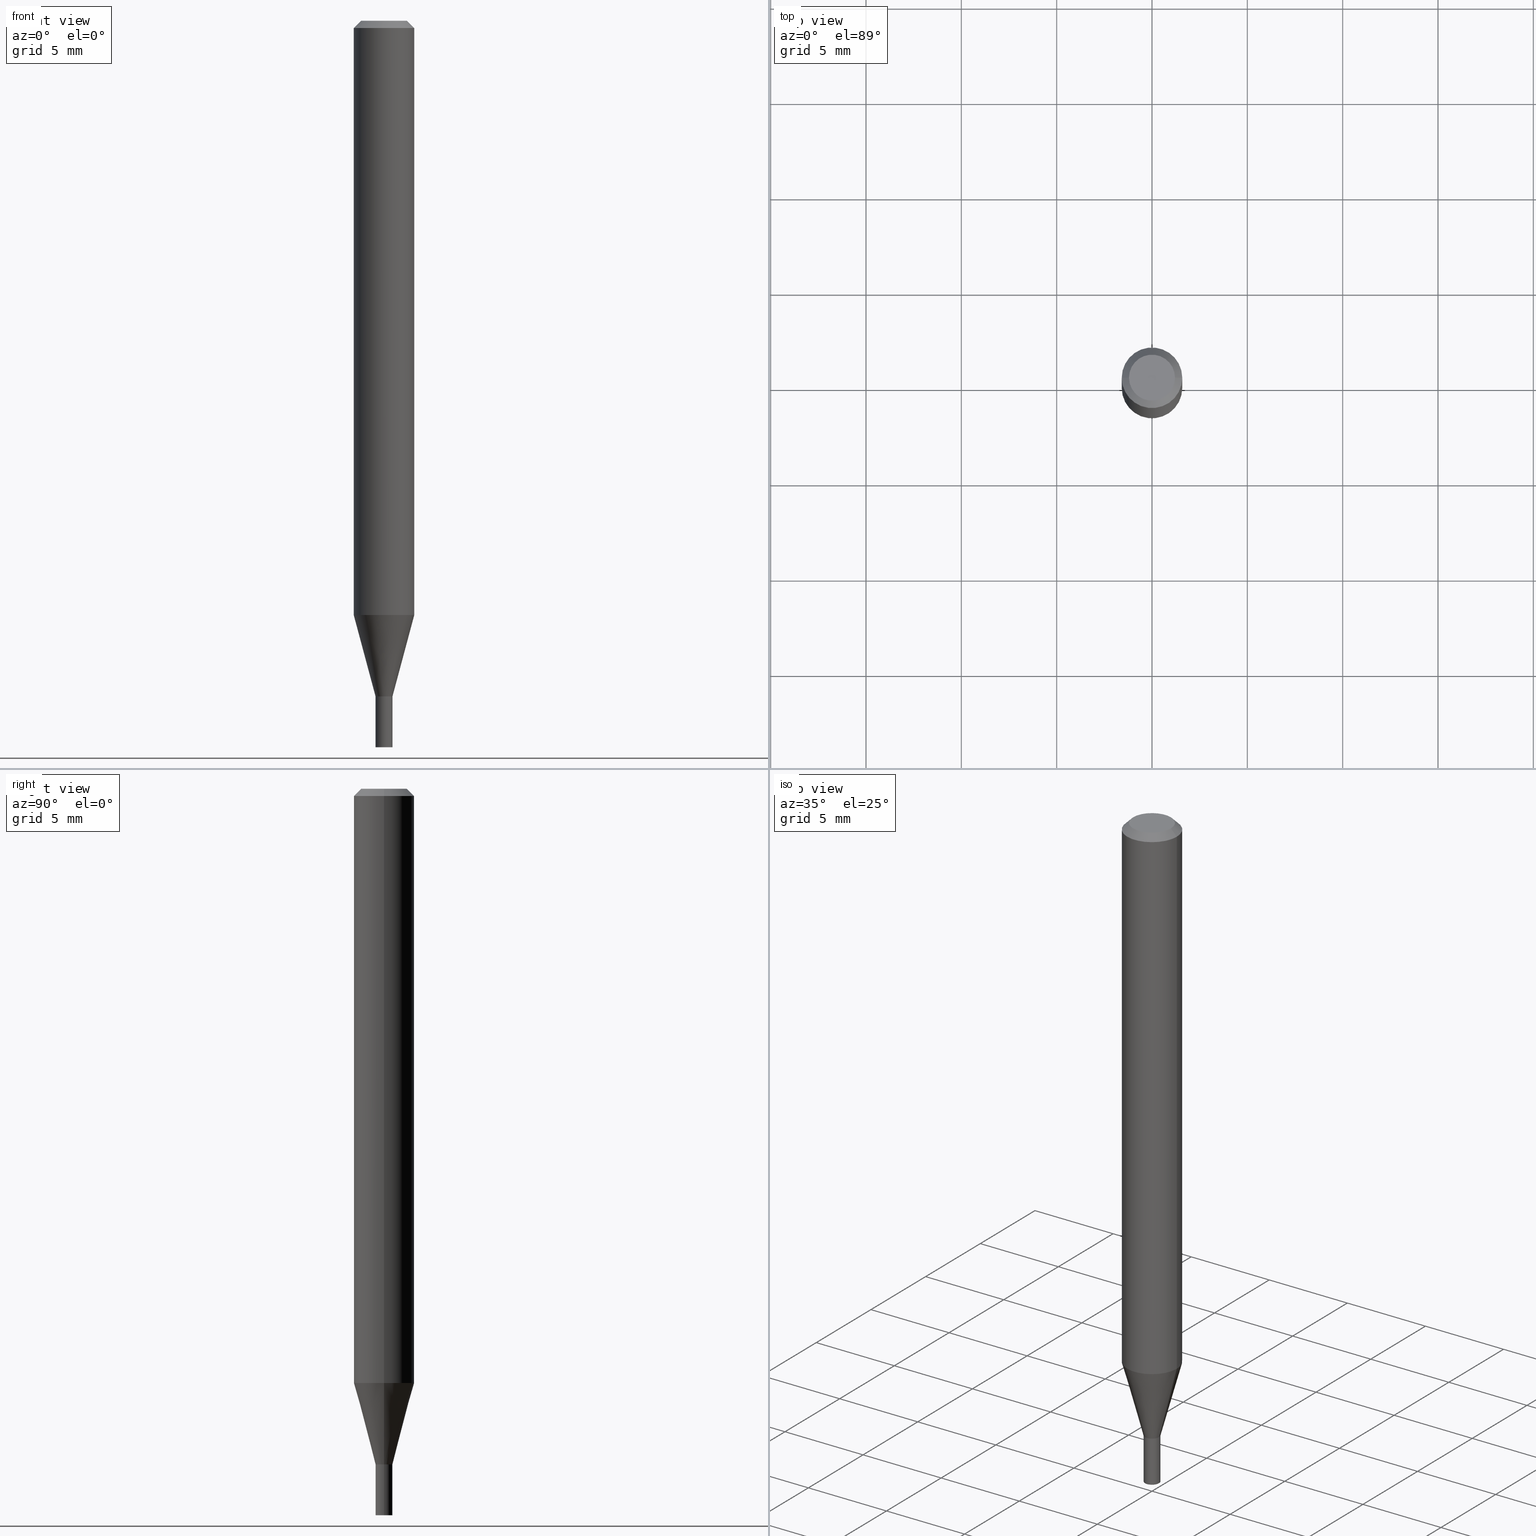
[diagram: canonical four-view strip — front | top / right | iso, engineering-drawing reading convention]
A machine part, canonical four-view strip (front | top / right | iso — engineering-drawing reading convention). The complete STEP part file that produces these views, byte-faithful:
ISO-10303-21;
HEADER;
FILE_DESCRIPTION (( 'STEP AP203' ),
    '1' );
FILE_NAME ('04141.STEP',
    '2024-03-14T17:05:29',
    ( '' ),
    ( '' ),
    'SwSTEP 2.0',
    'SolidWorks 2023',
    '' );
FILE_SCHEMA (( 'CONFIG_CONTROL_DESIGN' ));
ENDSEC;

DATA;
#1 = VECTOR ( 'NONE', #131, 39.37007874015748143 ) ;
#2 = VECTOR ( 'NONE', #178, 39.37007874015748143 ) ;
#3 = ADVANCED_FACE ( 'NONE', ( #314 ), #169, .T. ) ;
#4 = ORIENTED_EDGE ( 'NONE', *, *, #163, .T. ) ;
#5 = ORIENTED_EDGE ( 'NONE', *, *, #134, .F. ) ;
#6 = EDGE_CURVE ( 'NONE', #242, #431, #196, .T. ) ;
#7 = DIRECTION ( 'NONE',  ( 1.000000000000000000, -6.982962677686274599E-15, 0.000000000000000000 ) ) ;
#8 = VECTOR ( 'NONE', #105, 39.37007874015748143 ) ;
#9 = APPROVAL_PERSON_ORGANIZATION ( #465, #438, #360 ) ;
#10 = ORIENTED_EDGE ( 'NONE', *, *, #245, .F. ) ;
#11 = DIRECTION ( 'NONE',  ( -2.445468806185136597E-29, 3.491481338843145583E-15, 1.000000000000000000 ) ) ;
#12 = ORIENTED_EDGE ( 'NONE', *, *, #100, .T. ) ;
#13 = FACE_OUTER_BOUND ( 'NONE', #421, .T. ) ;
#14 = ORIENTED_EDGE ( 'NONE', *, *, #316, .F. ) ;
#15 = DIRECTION ( 'NONE',  ( -2.438088387897960049E-29, 3.491481338843145188E-15, 1.000000000000000000 ) ) ;
#16 = FACE_OUTER_BOUND ( 'NONE', #407, .T. ) ;
#17 = DIRECTION ( 'NONE',  ( -2.445468806185136597E-29, 3.491481338843145583E-15, 1.000000000000000000 ) ) ;
#18 = ORIENTED_EDGE ( 'NONE', *, *, #355, .F. ) ;
#19 = CC_DESIGN_PERSON_AND_ORGANIZATION_ASSIGNMENT ( #250, #328, ( #385 ) ) ;
#20 = APPLICATION_PROTOCOL_DEFINITION ( 'international standard', 'config_control_design', 1994, #217 ) ;
#21 = DIRECTION ( 'NONE',  ( 2.445468806185136597E-29, -3.491481338843145583E-15, -1.000000000000000000 ) ) ;
#22 = CARTESIAN_POINT ( 'NONE',  ( 3.668203209277705088E-31, -5.237222008264718399E-17, -0.01499999999999999944 ) ) ;
#23 = ADVANCED_BREP_SHAPE_REPRESENTATION ( '04141', ( #96, #252, #340 ), #262 ) ;
#24 = LENGTH_MEASURE_WITH_UNIT ( LENGTH_MEASURE( 0.02539999999999999897 ), #312 );
#25 = AXIS2_PLACEMENT_3D ( 'NONE', #334, #216, #120 ) ;
#26 = DIRECTION ( 'NONE',  ( 1.000000000000000000, -6.982962677686248567E-15, 0.000000000000000000 ) ) ;
#27 = ADVANCED_FACE ( 'NONE', ( #376 ), #277, .F. ) ;
#28 = ORIENTED_EDGE ( 'NONE', *, *, #389, .T. ) ;
#29 = DIRECTION ( 'NONE',  ( 1.000000000000000000, -6.982962677686266711E-15, 0.000000000000000000 ) ) ;
#30 =( NAMED_UNIT ( * ) SI_UNIT ( $, .STERADIAN. ) SOLID_ANGLE_UNIT ( ) );
#31 = CARTESIAN_POINT ( 'NONE',  ( 0.01700000000000000122, -4.989326833206854415E-15, -1.394999999999999796 ) ) ;
#32 = ORIENTED_EDGE ( 'NONE', *, *, #237, .T. ) ;
#33 = AXIS2_PLACEMENT_3D ( 'NONE', #22, #200, #29 ) ;
#34 = EDGE_CURVE ( 'NONE', #149, #361, #261, .T. ) ;
#35 = EDGE_CURVE ( 'NONE', #259, #313, #97, .T. ) ;
#36 = CONICAL_SURFACE ( 'NONE', #384, 0.01749999999999965472, 0.2617993877991502405 ) ;
#37 = CARTESIAN_POINT ( 'NONE',  ( 0.06250000000000000000, -4.811533449433679005E-16, -0.01499999999999999944 ) ) ;
#38 = DIRECTION ( 'NONE',  ( -2.445468806185136597E-29, 3.491481338843145583E-15, 1.000000000000000000 ) ) ;
#39 = SHAPE_DEFINITION_REPRESENTATION ( #143, #23 ) ;
#40 = AXIS2_PLACEMENT_3D ( 'NONE', #440, #342, #82 ) ;
#41 = CARTESIAN_POINT ( 'NONE',  ( 3.668203209277704895E-29, -5.237222008264718177E-15, -1.500000000000000222 ) ) ;
#42 = VECTOR ( 'NONE', #285, 39.37007874015748143 ) ;
#43 = VERTEX_POINT ( 'NONE', #179 ) ;
#44 = DIRECTION ( 'NONE',  ( -2.445468806185136597E-29, 3.491481338843145583E-15, 1.000000000000000000 ) ) ;
#45 = EDGE_LOOP ( 'NONE', ( #18, #238, #403, #317 ) ) ;
#46 = ADVANCED_FACE ( 'NONE', ( #188 ), #93, .T. ) ;
#47 = DIRECTION ( 'NONE',  ( -2.445468806185136597E-29, 3.491481338843145583E-15, 1.000000000000000000 ) ) ;
#48 = DIRECTION ( 'NONE',  ( -2.445468806185136877E-29, 3.491481338843145188E-15, 1.000000000000000000 ) ) ;
#49 = DIRECTION ( 'NONE',  ( -2.445468806185136597E-29, 3.491481338843145583E-15, 1.000000000000000000 ) ) ;
#50 = ORIENTED_EDGE ( 'NONE', *, *, #35, .F. ) ;
#51 = CARTESIAN_POINT ( 'NONE',  ( 0.000000000000000000, 0.000000000000000000, 0.000000000000000000 ) ) ;
#52 = LOCAL_TIME ( 13, 5, 29.00000000000000000, #275 ) ;
#53 = LOCAL_TIME ( 13, 5, 29.00000000000000000, #284 ) ;
#54 = ORIENTED_EDGE ( 'NONE', *, *, #273, .T. ) ;
#55 = ADVANCED_FACE ( 'NONE', ( #219 ), #83, .F. ) ;
#56 = VERTEX_POINT ( 'NONE', #290 ) ;
#57 = CALENDAR_DATE ( 2024, 14, 3 ) ;
#58 = CC_DESIGN_PERSON_AND_ORGANIZATION_ASSIGNMENT ( #244, #205, ( #385 ) ) ;
#59 = PRODUCT_DEFINITION ( 'UNKNOWN', '', #385, #398 ) ;
#60 = CC_DESIGN_DATE_AND_TIME_ASSIGNMENT ( #91, #381, ( #59 ) ) ;
#61 = DIRECTION ( 'NONE',  ( 1.000000000000000000, -6.982962677686267499E-15, 4.852736867747366768E-29 ) ) ;
#62 = ORIENTED_EDGE ( 'NONE', *, *, #280, .F. ) ;
#63 = MECHANICAL_CONTEXT ( 'NONE', #420, 'mechanical' ) ;
#64 = CARTESIAN_POINT ( 'NONE',  ( 3.000731362142915866E-29, -4.284249108925330363E-15, -1.227057713659399862 ) ) ;
#65 = ORIENTED_EDGE ( 'NONE', *, *, #296, .F. ) ;
#66 = CARTESIAN_POINT ( 'NONE',  ( 0.06250000000000000000, -4.364351673553916694E-16, 3.047610484872459871E-30 ) ) ;
#67 = PERSON_AND_ORGANIZATION ( #378, #207 ) ;
#68 = AXIS2_PLACEMENT_3D ( 'NONE', #310, #455, #241 ) ;
#69 = AXIS2_PLACEMENT_3D ( 'NONE', #144, #288, #78 ) ;
#70 = EDGE_CURVE ( 'NONE', #371, #266, #416, .T. ) ;
#71 = DIRECTION ( 'NONE',  ( -2.445468806185136597E-29, 3.491481338843145583E-15, 1.000000000000000000 ) ) ;
#72 = ORIENTED_EDGE ( 'NONE', *, *, #237, .F. ) ;
#73 = ORIENTED_EDGE ( 'NONE', *, *, #198, .T. ) ;
#74 = SECURITY_CLASSIFICATION_LEVEL ( 'unclassified' ) ;
#75 = EDGE_LOOP ( 'NONE', ( #127, #32, #98, #442 ) ) ;
#76 = UNCERTAINTY_MEASURE_WITH_UNIT (LENGTH_MEASURE( 1.000000000000000082E-05 ), #272, 'distance_accuracy_value', 'NONE');
#77 = FACE_OUTER_BOUND ( 'NONE', #75, .T. ) ;
#78 = DIRECTION ( 'NONE',  ( 1.000000000000000000, -6.982962677686276177E-15, 0.000000000000000000 ) ) ;
#79 = ORIENTED_EDGE ( 'NONE', *, *, #273, .F. ) ;
#80 = DIRECTION ( 'NONE',  ( -0.7071067811865642261, 7.493145998870414114E-15, 0.7071067811865309194 ) ) ;
#81 = EDGE_CURVE ( 'NONE', #432, #386, #369, .T. ) ;
#82 = DIRECTION ( 'NONE',  ( 1.000000000000000000, -6.982962677686262766E-15, 0.000000000000000000 ) ) ;
#83 = PLANE ( 'NONE',  #251 ) ;
#84 = LINE ( 'NONE', #373, #172 ) ;
#85 = CYLINDRICAL_SURFACE ( 'NONE', #68, 0.01749999999999965125 ) ;
#86 = ORIENTED_EDGE ( 'NONE', *, *, #389, .F. ) ;
#87 = CARTESIAN_POINT ( 'NONE',  ( 0.01750000000000000167, -5.359423855124228160E-15, -1.500000000000000222 ) ) ;
#88 = AXIS2_PLACEMENT_3D ( 'NONE', #409, #38, #400 ) ;
#89 = ORIENTED_EDGE ( 'NONE', *, *, #327, .F. ) ;
#90 = PERSON_AND_ORGANIZATION ( #378, #207 ) ;
#91 = DATE_AND_TIME ( #197, #354 ) ;
#92 = LINE ( 'NONE', #346, #434 ) ;
#93 = CONICAL_SURFACE ( 'NONE', #88, 0.01700000000000000122, 0.7853981633974718157 ) ;
#94 = CARTESIAN_POINT ( 'NONE',  ( 3.411428984628265351E-29, -4.870616467686188228E-15, -1.395000000000000018 ) ) ;
#95 = APPLICATION_PROTOCOL_DEFINITION ( 'international standard', 'config_control_design', 1994, #420 ) ;
#96 = MANIFOLD_SOLID_BREP ( 'Body-Move/Copy2[1]', #322 ) ;
#97 = LINE ( 'NONE', #243, #382 ) ;
#98 = ORIENTED_EDGE ( 'NONE', *, *, #81, .T. ) ;
#99 = SECURITY_CLASSIFICATION ( '', '', #74 ) ;
#100 = EDGE_CURVE ( 'NONE', #259, #351, #424, .T. ) ;
#101 = CARTESIAN_POINT ( 'NONE',  ( 0.000000000000000000, 0.000000000000000000, 0.000000000000000000 ) ) ;
#102 = EDGE_LOOP ( 'NONE', ( #54, #439, #5, #228 ) ) ;
#103 = COORDINATED_UNIVERSAL_TIME_OFFSET ( 5, 0, .BEHIND. ) ;
#104 = AXIS2_PLACEMENT_3D ( 'NONE', #404, #47, #338 ) ;
#105 = DIRECTION ( 'NONE',  ( -2.445468806185136877E-29, 3.491481338843145188E-15, 1.000000000000000000 ) ) ;
#106 = ORIENTED_EDGE ( 'NONE', *, *, #321, .F. ) ;
#107 = COORDINATED_UNIVERSAL_TIME_OFFSET ( 5, 0, .BEHIND. ) ;
#108 = CARTESIAN_POINT ( 'NONE',  ( 3.411428984628265351E-29, -4.870616467686188228E-15, -1.395000000000000018 ) ) ;
#109 = ORIENTED_EDGE ( 'NONE', *, *, #245, .T. ) ;
#110 = ORIENTED_EDGE ( 'NONE', *, *, #34, .F. ) ;
#111 = CARTESIAN_POINT ( 'NONE',  ( 0.01749999999999965125, -4.991072573876274341E-15, -1.394500000000000073 ) ) ;
#112 = ADVANCED_FACE ( 'NONE', ( #451 ), #161, .T. ) ;
#113 = DIRECTION ( 'NONE',  ( -2.445468806185136597E-29, 3.491481338843145583E-15, 1.000000000000000000 ) ) ;
#114 = ORIENTED_EDGE ( 'NONE', *, *, #134, .T. ) ;
#115 = CIRCLE ( 'NONE', #69, 0.01749999999999965472 ) ;
#116 = CC_DESIGN_PERSON_AND_ORGANIZATION_ASSIGNMENT ( #418, #203, ( #222 ) ) ;
#117 = DIRECTION ( 'NONE',  ( 1.000000000000000000, -6.982962677686265922E-15, 4.876176775795935793E-29 ) ) ;
#118 = CC_DESIGN_APPROVAL ( #438, ( #99 ) ) ;
#119 = CARTESIAN_POINT ( 'NONE',  ( 3.410206250225173110E-29, -4.868870727016767513E-15, -1.394500000000000073 ) ) ;
#120 = DIRECTION ( 'NONE',  ( -1.000000000000000000, 6.982962677686266711E-15, 0.000000000000000000 ) ) ;
#121 = DIRECTION ( 'NONE',  ( 1.000000000000000000, -6.982962677686265922E-15, 4.876176775795935793E-29 ) ) ;
#122 = CARTESIAN_POINT ( 'NONE',  ( 0.000000000000000000, 0.000000000000000000, 0.000000000000000000 ) ) ;
#123 = ORIENTED_EDGE ( 'NONE', *, *, #316, .T. ) ;
#124 = FACE_OUTER_BOUND ( 'NONE', #456, .T. ) ;
#125 = CONICAL_SURFACE ( 'NONE', #390, 0.01700000000000000122, 0.7853981633974718157 ) ;
#126 = DIRECTION ( 'NONE',  ( -2.445468806185136597E-29, 3.491481338843145583E-15, 1.000000000000000000 ) ) ;
#127 = ORIENTED_EDGE ( 'NONE', *, *, #212, .F. ) ;
#128 = DIRECTION ( 'NONE',  ( 0.000000000000000000, 0.000000000000000000, 1.000000000000000000 ) ) ;
#129 = CARTESIAN_POINT ( 'NONE',  ( -0.01749999999999965125, -4.744525748258752631E-15, -1.394500000000000073 ) ) ;
#130 = DIRECTION ( 'NONE',  ( 1.000000000000000000, -6.982962677686262766E-15, 0.000000000000000000 ) ) ;
#131 = DIRECTION ( 'NONE',  ( -2.445468806185136877E-29, 3.491481338843145188E-15, 1.000000000000000000 ) ) ;
#132 = DIRECTION ( 'NONE',  ( 1.000000000000000000, -6.982962677686266711E-15, 0.000000000000000000 ) ) ;
#133 = APPROVAL_PERSON_ORGANIZATION ( #90, #239, #380 ) ;
#134 = EDGE_CURVE ( 'NONE', #386, #414, #374, .T. ) ;
#135 = CC_DESIGN_PERSON_AND_ORGANIZATION_ASSIGNMENT ( #419, #448, ( #59 ) ) ;
#136 = CIRCLE ( 'NONE', #33, 0.06250000000000000000 ) ;
#137 = ORIENTED_EDGE ( 'NONE', *, *, #426, .F. ) ;
#138 = PERSON_AND_ORGANIZATION_ROLE ( 'classification_officer' ) ;
#139 = LINE ( 'NONE', #37, #2 ) ;
#140 = DATE_AND_TIME ( #170, #53 ) ;
#141 = FACE_OUTER_BOUND ( 'NONE', #151, .T. ) ;
#142 = AXIS2_PLACEMENT_3D ( 'NONE', #405, #295, #26 ) ;
#143 = PRODUCT_DEFINITION_SHAPE ( 'NONE', 'NONE',  #59 ) ;
#144 = CARTESIAN_POINT ( 'NONE',  ( 3.411428984628265351E-29, -4.870616467686188228E-15, -1.395000000000000018 ) ) ;
#145 = ORIENTED_EDGE ( 'NONE', *, *, #457, .F. ) ;
#146 = ADVANCED_FACE ( 'NONE', ( #423 ), #85, .F. ) ;
#147 = LINE ( 'NONE', #152, #42 ) ;
#148 = DIRECTION ( 'NONE',  ( -1.000000000000000000, 6.982962677686265922E-15, -4.876176775795935793E-29 ) ) ;
#149 = VERTEX_POINT ( 'NONE', #129 ) ;
#150 = EDGE_CURVE ( 'NONE', #324, #361, #230, .T. ) ;
#151 = EDGE_LOOP ( 'NONE', ( #449, #379, #145, #402 ) ) ;
#152 = CARTESIAN_POINT ( 'NONE',  ( -0.01749999999999965472, -4.746271488928174135E-15, -1.395000000000000018 ) ) ;
#153 = AXIS2_PLACEMENT_3D ( 'NONE', #459, #21, #233 ) ;
#154 = DIRECTION ( 'NONE',  ( 1.000000000000000000, -6.982962677686248567E-15, 0.000000000000000000 ) ) ;
#155 = ORIENTED_EDGE ( 'NONE', *, *, #355, .T. ) ;
#156 = DATE_AND_TIME ( #57, #52 ) ;
#157 = EDGE_CURVE ( 'NONE', #383, #242, #450, .T. ) ;
#158 = DIRECTION ( 'NONE',  ( 2.438088387897960049E-29, -3.491481338843145188E-15, -1.000000000000000000 ) ) ;
#159 = DIRECTION ( 'NONE',  ( -2.445468806185136597E-29, 3.491481338843145583E-15, 1.000000000000000000 ) ) ;
#160 = AXIS2_PLACEMENT_3D ( 'NONE', #119, #267, #410 ) ;
#161 = CYLINDRICAL_SURFACE ( 'NONE', #286, 0.01750000000000000167 ) ;
#162 =( NAMED_UNIT ( * ) PLANE_ANGLE_UNIT ( ) SI_UNIT ( $, .RADIAN. ) );
#163 = EDGE_CURVE ( 'NONE', #266, #361, #201, .T. ) ;
#164 = DIRECTION ( 'NONE',  ( -2.445468806185136597E-29, 3.491481338843145583E-15, 1.000000000000000000 ) ) ;
#165 = DIRECTION ( 'NONE',  ( -2.445468806185136597E-29, 3.491481338843145583E-15, 1.000000000000000000 ) ) ;
#166 = ORIENTED_EDGE ( 'NONE', *, *, #150, .F. ) ;
#167 = CARTESIAN_POINT ( 'NONE',  ( 0.06250000000000000000, -4.888073874380388472E-16, -0.01499999999999999944 ) ) ;
#168 = FACE_OUTER_BOUND ( 'NONE', #283, .T. ) ;
#169 = CONICAL_SURFACE ( 'NONE', #153, 0.06250000000000000000, 0.7853981633974658205 ) ;
#170 = CALENDAR_DATE ( 2024, 14, 3 ) ;
#171 = DIRECTION ( 'NONE',  ( -0.7071067811865598962, 2.468850131082386434E-15, -0.7071067811865351382 ) ) ;
#172 = VECTOR ( 'NONE', #80, 39.37007874015748143 ) ;
#173 = ORIENTED_EDGE ( 'NONE', *, *, #6, .T. ) ;
#174 = ADVANCED_FACE ( 'NONE', ( #429 ), #357, .T. ) ;
#175 = DATE_AND_TIME ( #393, #464 ) ;
#176 = LINE ( 'NONE', #326, #271 ) ;
#177 = APPROVAL_DATE_TIME ( #427, #438 ) ;
#178 = DIRECTION ( 'NONE',  ( 0.7071067811865598962, -7.319954787623298644E-15, -0.7071067811865351382 ) ) ;
#179 = CARTESIAN_POINT ( 'NONE',  ( -0.01749999999999965472, -4.293215694001720941E-15, -1.395000000000000018 ) ) ;
#180 = DIRECTION ( 'NONE',  ( -2.445468806185136877E-29, 3.491481338843145188E-15, 1.000000000000000000 ) ) ;
#181 = ADVANCED_FACE ( 'NONE', ( #141 ), #186, .T. ) ;
#182 = ORIENTED_EDGE ( 'NONE', *, *, #430, .F. ) ;
#183 = AXIS2_PLACEMENT_3D ( 'NONE', #51, #395, #329 ) ;
#184 = DIRECTION ( 'NONE',  ( -2.445468806185136597E-29, 3.491481338843145583E-15, 1.000000000000000000 ) ) ;
#185 = ORIENTED_EDGE ( 'NONE', *, *, #366, .T. ) ;
#186 = CYLINDRICAL_SURFACE ( 'NONE', #323, 0.06250000000000000000 ) ;
#187 = DIRECTION ( 'NONE',  ( 1.000000000000000000, -6.982962677686274599E-15, 0.000000000000000000 ) ) ;
#188 = FACE_OUTER_BOUND ( 'NONE', #193, .T. ) ;
#189 = CARTESIAN_POINT ( 'NONE',  ( 3.411428984628264790E-29, -4.870616467686187439E-15, -1.394999999999999796 ) ) ;
#190 = ORIENTED_EDGE ( 'NONE', *, *, #70, .T. ) ;
#191 = CIRCLE ( 'NONE', #160, 0.01749999999999965125 ) ;
#192 = CARTESIAN_POINT ( 'NONE',  ( 0.01749999999999965472, -4.992818314545695844E-15, -1.395000000000000018 ) ) ;
#193 = EDGE_LOOP ( 'NONE', ( #123, #292, #209, #291 ) ) ;
#194 = CARTESIAN_POINT ( 'NONE',  ( 3.316907271900976096E-16, 0.04749999999999999362, -4.273281759770383169E-16 ) ) ;
#195 = DIRECTION ( 'NONE',  ( 1.000000000000000000, 0.000000000000000000, 0.000000000000000000 ) ) ;
#196 = LINE ( 'NONE', #66, #1 ) ;
#197 = CALENDAR_DATE ( 2024, 14, 3 ) ;
#198 = EDGE_CURVE ( 'NONE', #361, #149, #191, .T. ) ;
#199 = ORIENTED_EDGE ( 'NONE', *, *, #150, .T. ) ;
#200 = DIRECTION ( 'NONE',  ( -2.445468806185136597E-29, 3.491481338843145583E-15, 1.000000000000000000 ) ) ;
#201 = LINE ( 'NONE', #31, #417 ) ;
#202 = DIMENSIONAL_EXPONENTS ( 1.000000000000000000, 0.000000000000000000, 0.000000000000000000, 0.000000000000000000, 0.000000000000000000, 0.000000000000000000, 0.000000000000000000 ) ;
#203 = PERSON_AND_ORGANIZATION_ROLE ( 'design_owner' ) ;
#204 = ORIENTED_EDGE ( 'NONE', *, *, #430, .T. ) ;
#205 = PERSON_AND_ORGANIZATION_ROLE ( 'design_supplier' ) ;
#206 = AXIS2_PLACEMENT_3D ( 'NONE', #94, #126, #347 ) ;
#207 = ORGANIZATION ( 'UNSPECIFIED', 'UNSPECIFIED', '' ) ;
#208 = CC_DESIGN_APPROVAL ( #304, ( #385 ) ) ;
#209 = ORIENTED_EDGE ( 'NONE', *, *, #198, .F. ) ;
#210 = DIRECTION ( 'NONE',  ( 1.000000000000000000, -6.982962677686266711E-15, 4.876176775795935793E-29 ) ) ;
#211 = EDGE_LOOP ( 'NONE', ( #12, #28 ) ) ;
#212 = EDGE_CURVE ( 'NONE', #56, #414, #176, .T. ) ;
#213 = AXIS2_PLACEMENT_3D ( 'NONE', #339, #17, #61 ) ;
#214 = CIRCLE ( 'NONE', #142, 0.01750000000000000167 ) ;
#215 = PERSON_AND_ORGANIZATION ( #378, #207 ) ;
#216 = DIRECTION ( 'NONE',  ( 2.445468806185136597E-29, -3.491481338843145583E-15, -1.000000000000000000 ) ) ;
#217 = APPLICATION_CONTEXT ( 'configuration controlled 3d designs of mechanical parts and assemblies' ) ;
#218 = CARTESIAN_POINT ( 'NONE',  ( -0.01700000000000000122, -4.747174975432861466E-15, -1.394999999999999796 ) ) ;
#219 = FACE_OUTER_BOUND ( 'NONE', #391, .T. ) ;
#220 = ORIENTED_EDGE ( 'NONE', *, *, #352, .F. ) ;
#221 = AXIS2_PLACEMENT_3D ( 'NONE', #240, #422, #132 ) ;
#222 = PRODUCT ( '04141', '04141', '', ( #63 ) ) ;
#223 = CYLINDRICAL_SURFACE ( 'NONE', #183, 0.01750000000000000167 ) ;
#224 = DIRECTION ( 'NONE',  ( 1.000000000000000000, -6.982962677686274599E-15, 0.000000000000000000 ) ) ;
#225 = ORIENTED_EDGE ( 'NONE', *, *, #70, .F. ) ;
#226 = CARTESIAN_POINT ( 'NONE',  ( -0.06250000000000000000, 4.440892098500626162E-16, -3.074334431409316114E-30 ) ) ;
#227 = CARTESIAN_POINT ( 'NONE',  ( 0.01750000000000000167, -1.222018468595096625E-16, 8.533309357642889039E-31 ) ) ;
#228 = ORIENTED_EDGE ( 'NONE', *, *, #81, .F. ) ;
#229 = CARTESIAN_POINT ( 'NONE',  ( 0.01749999999999965472, -4.992818314545695844E-15, -1.395000000000000018 ) ) ;
#230 = LINE ( 'NONE', #276, #270 ) ;
#231 = VECTOR ( 'NONE', #48, 39.37007874015748143 ) ;
#232 = CIRCLE ( 'NONE', #278, 0.01749999999999965472 ) ;
#233 = DIRECTION ( 'NONE',  ( -1.000000000000000000, 6.982962677686266711E-15, 0.000000000000000000 ) ) ;
#234 = DIRECTION ( 'NONE',  ( 1.000000000000000000, -6.982962677686276177E-15, 0.000000000000000000 ) ) ;
#235 = EDGE_CURVE ( 'NONE', #414, #386, #375, .T. ) ;
#236 = COORDINATED_UNIVERSAL_TIME_OFFSET ( 5, 0, .BEHIND. ) ;
#237 = EDGE_CURVE ( 'NONE', #56, #432, #214, .T. ) ;
#238 = ORIENTED_EDGE ( 'NONE', *, *, #100, .F. ) ;
#239 = APPROVAL ( #415, 'UNSPECIFIED' ) ;
#240 = CARTESIAN_POINT ( 'NONE',  ( 3.668203209277705088E-31, -5.237222008264718399E-17, -0.01499999999999999944 ) ) ;
#241 = DIRECTION ( 'NONE',  ( 1.000000000000000000, -6.982962677686265922E-15, 4.876176775795935793E-29 ) ) ;
#242 = VERTEX_POINT ( 'NONE', #311 ) ;
#243 = CARTESIAN_POINT ( 'NONE',  ( -0.06250000000000000000, 3.840629472727444916E-16, -0.01499999999999999944 ) ) ;
#244 = PERSON_AND_ORGANIZATION ( #378, #207 ) ;
#245 = EDGE_CURVE ( 'NONE', #43, #324, #232, .T. ) ;
#246 = CC_DESIGN_PERSON_AND_ORGANIZATION_ASSIGNMENT ( #215, #138, ( #99 ) ) ;
#247 = AXIS2_PLACEMENT_3D ( 'NONE', #41, #184, #154 ) ;
#248 = ADVANCED_FACE ( 'NONE', ( #168 ), #387, .F. ) ;
#249 = EDGE_LOOP ( 'NONE', ( #10, #204, #307, #166 ) ) ;
#250 = PERSON_AND_ORGANIZATION ( #378, #207 ) ;
#251 = AXIS2_PLACEMENT_3D ( 'NONE', #364, #337, #148 ) ;
#252 = MANIFOLD_SOLID_BREP ( 'Body-Move/Copy2[2]', #401 ) ;
#253 = AXIS2_PLACEMENT_3D ( 'NONE', #189, #444, #7 ) ;
#254 = CARTESIAN_POINT ( 'NONE',  ( 0.04749999999999999362, -4.035134999187587991E-16, -5.229656247639753758E-16 ) ) ;
#255 = ORIENTED_EDGE ( 'NONE', *, *, #235, .T. ) ;
#256 = DIRECTION ( 'NONE',  ( -2.445468806185136597E-29, 3.491481338843145583E-15, 1.000000000000000000 ) ) ;
#257 = EDGE_LOOP ( 'NONE', ( #65, #109, #349, #435 ) ) ;
#258 = APPROVAL_ROLE ( '' ) ;
#259 = VERTEX_POINT ( 'NONE', #299 ) ;
#260 = CARTESIAN_POINT ( 'NONE',  ( 0.01750000000000000167, -4.992818314545698211E-15, -1.395000000000000018 ) ) ;
#261 = CIRCLE ( 'NONE', #353, 0.01749999999999965125 ) ;
#262 =( GEOMETRIC_REPRESENTATION_CONTEXT ( 3 ) GLOBAL_UNCERTAINTY_ASSIGNED_CONTEXT ( ( #76 ) ) GLOBAL_UNIT_ASSIGNED_CONTEXT ( ( #272, #162, #30 ) ) REPRESENTATION_CONTEXT ( 'NONE', 'WORKASPACE' ) );
#263 = EDGE_LOOP ( 'NONE', ( #86, #155, #367, #50 ) ) ;
#264 = CARTESIAN_POINT ( 'NONE',  ( -0.06250000000000000000, -1.724221454653926105E-15, -0.01499999999999999944 ) ) ;
#265 = ADVANCED_FACE ( 'NONE', ( #77 ), #223, .T. ) ;
#266 = VERTEX_POINT ( 'NONE', #368 ) ;
#267 = DIRECTION ( 'NONE',  ( -2.445468806185136597E-29, 3.491481338843145583E-15, 1.000000000000000000 ) ) ;
#268 = CARTESIAN_POINT ( 'NONE',  ( 0.000000000000000000, 0.000000000000000000, 0.000000000000000000 ) ) ;
#269 = CARTESIAN_POINT ( 'NONE',  ( -0.01750000000000000167, -4.929574259217435954E-15, -1.395000000000000018 ) ) ;
#270 = VECTOR ( 'NONE', #343, 39.37007874015748143 ) ;
#271 = VECTOR ( 'NONE', #180, 39.37007874015748143 ) ;
#272 =( CONVERSION_BASED_UNIT ( 'INCH', #24 ) LENGTH_UNIT ( ) NAMED_UNIT ( #202 ) );
#273 = EDGE_CURVE ( 'NONE', #432, #56, #452, .T. ) ;
#274 = ADVANCED_FACE ( 'NONE', ( #13 ), #125, .T. ) ;
#275 = COORDINATED_UNIVERSAL_TIME_OFFSET ( 5, 0, .BEHIND. ) ;
#276 = CARTESIAN_POINT ( 'NONE',  ( 0.01749999999999965125, -1.222018468595072220E-16, 8.533309357642717380E-31 ) ) ;
#277 = PLANE ( 'NONE',  #462 ) ;
#278 = AXIS2_PLACEMENT_3D ( 'NONE', #443, #49, #466 ) ;
#279 = CC_DESIGN_DATE_AND_TIME_ASSIGNMENT ( #140, #437, ( #99 ) ) ;
#280 = EDGE_CURVE ( 'NONE', #324, #242, #447, .T. ) ;
#281 = VECTOR ( 'NONE', #336, 39.37007874015748143 ) ;
#282 = ADVANCED_FACE ( 'NONE', ( #399 ), #463, .T. ) ;
#283 = EDGE_LOOP ( 'NONE', ( #14, #225 ) ) ;
#284 = COORDINATED_UNIVERSAL_TIME_OFFSET ( 5, 0, .BEHIND. ) ;
#285 = DIRECTION ( 'NONE',  ( -0.2588190451025215166, 5.211531920934551042E-15, 0.9659258262890679791 ) ) ;
#286 = AXIS2_PLACEMENT_3D ( 'NONE', #122, #165, #412 ) ;
#287 = CIRCLE ( 'NONE', #253, 0.01700000000000000122 ) ;
#288 = DIRECTION ( 'NONE',  ( -2.445468806185136597E-29, 3.491481338843145583E-15, 1.000000000000000000 ) ) ;
#289 = CYLINDRICAL_SURFACE ( 'NONE', #331, 0.01749999999999965125 ) ;
#290 = CARTESIAN_POINT ( 'NONE',  ( -0.01750000000000000167, -4.929574259217435954E-15, -1.500000000000000222 ) ) ;
#291 = ORIENTED_EDGE ( 'NONE', *, *, #163, .F. ) ;
#292 = ORIENTED_EDGE ( 'NONE', *, *, #321, .T. ) ;
#293 = DIRECTION ( 'NONE',  ( -2.445468806185136597E-29, 3.491481338843145583E-15, 1.000000000000000000 ) ) ;
#294 = DIRECTION ( 'NONE',  ( -2.445468806185136597E-29, 3.491481338843145583E-15, 1.000000000000000000 ) ) ;
#295 = DIRECTION ( 'NONE',  ( -2.445468806185136597E-29, 3.491481338843145583E-15, 1.000000000000000000 ) ) ;
#296 = EDGE_CURVE ( 'NONE', #43, #383, #147, .T. ) ;
#297 = CIRCLE ( 'NONE', #104, 0.04749999999999999362 ) ;
#298 = CC_DESIGN_SECURITY_CLASSIFICATION ( #99, ( #385 ) ) ;
#299 = CARTESIAN_POINT ( 'NONE',  ( -0.04749999999999999362, 3.578768372314202124E-16, -5.229656247639803061E-16 ) ) ;
#300 = APPROVAL_DATE_TIME ( #156, #239 ) ;
#301 = DIRECTION ( 'NONE',  ( -1.000000000000000000, 6.982962677686265922E-15, -4.876176775795935793E-29 ) ) ;
#302 = DIRECTION ( 'NONE',  ( 1.000000000000000000, -6.982962677686266711E-15, 4.876176775795935793E-29 ) ) ;
#303 = CARTESIAN_POINT ( 'NONE',  ( 0.000000000000000000, 0.000000000000000000, 0.000000000000000000 ) ) ;
#304 = APPROVAL ( #332, 'UNSPECIFIED' ) ;
#305 = ADVANCED_FACE ( 'NONE', ( #16 ), #289, .F. ) ;
#306 = AXIS2_PLACEMENT_3D ( 'NONE', #64, #164, #130 ) ;
#307 = ORIENTED_EDGE ( 'NONE', *, *, #34, .T. ) ;
#308 = AXIS2_PLACEMENT_3D ( 'NONE', #362, #15, #411 ) ;
#309 = DIRECTION ( 'NONE',  ( -2.445468806185136597E-29, 3.491481338843145583E-15, 1.000000000000000000 ) ) ;
#310 = CARTESIAN_POINT ( 'NONE',  ( 0.000000000000000000, 0.000000000000000000, 0.000000000000000000 ) ) ;
#311 = CARTESIAN_POINT ( 'NONE',  ( 0.06249999999999999306, -4.720684276280722821E-15, -1.227057713659399862 ) ) ;
#312 =( LENGTH_UNIT ( ) NAMED_UNIT ( * ) SI_UNIT ( $, .METRE. ) );
#313 = VERTEX_POINT ( 'NONE', #264 ) ;
#314 = FACE_OUTER_BOUND ( 'NONE', #45, .T. ) ;
#315 = CARTESIAN_POINT ( 'NONE',  ( 3.411428984628265351E-29, -4.870616467686188228E-15, -1.395000000000000018 ) ) ;
#316 = EDGE_CURVE ( 'NONE', #266, #371, #287, .T. ) ;
#317 = ORIENTED_EDGE ( 'NONE', *, *, #426, .T. ) ;
#318 = ORIENTED_EDGE ( 'NONE', *, *, #296, .T. ) ;
#319 = CC_DESIGN_APPROVAL ( #239, ( #59 ) ) ;
#320 = LOCAL_TIME ( 13, 5, 29.00000000000000000, #107 ) ;
#321 = EDGE_CURVE ( 'NONE', #371, #149, #84, .T. ) ;
#322 = CLOSED_SHELL ( 'NONE', ( #112, #413, #265, #55 ) ) ;
#323 = AXIS2_PLACEMENT_3D ( 'NONE', #333, #11, #302 ) ;
#324 = VERTEX_POINT ( 'NONE', #192 ) ;
#325 = APPROVAL_DATE_TIME ( #175, #304 ) ;
#326 = CARTESIAN_POINT ( 'NONE',  ( -0.01750000000000000167, 1.243449787580175444E-16, -8.608136407946085539E-31 ) ) ;
#327 = EDGE_CURVE ( 'NONE', #383, #313, #408, .T. ) ;
#328 = PERSON_AND_ORGANIZATION_ROLE ( 'creator' ) ;
#329 = DIRECTION ( 'NONE',  ( 1.000000000000000000, -6.982962677686265922E-15, 4.876176775795936353E-29 ) ) ;
#330 = CARTESIAN_POINT ( 'NONE',  ( 3.411428984628265351E-29, -4.870616467686188228E-15, -1.395000000000000018 ) ) ;
#331 = AXIS2_PLACEMENT_3D ( 'NONE', #268, #294, #117 ) ;
#332 = APPROVAL_STATUS ( 'not_yet_approved' ) ;
#333 = CARTESIAN_POINT ( 'NONE',  ( 0.000000000000000000, 0.000000000000000000, 0.000000000000000000 ) ) ;
#334 = CARTESIAN_POINT ( 'NONE',  ( 3.668203209277705088E-31, -5.237222008264718399E-17, -0.01499999999999999944 ) ) ;
#335 = DIRECTION ( 'NONE',  ( 1.000000000000000000, -6.982962677686248567E-15, 0.000000000000000000 ) ) ;
#336 = DIRECTION ( 'NONE',  ( 0.2588190451025215166, 1.565188264969620784E-15, 0.9659258262890679791 ) ) ;
#337 = DIRECTION ( 'NONE',  ( 2.438088387897960049E-29, -3.491481338843145188E-15, -1.000000000000000000 ) ) ;
#338 = DIRECTION ( 'NONE',  ( 1.000000000000000000, -6.982962677686267499E-15, 4.852736867747366768E-29 ) ) ;
#339 = CARTESIAN_POINT ( 'NONE',  ( 1.278896122067429216E-44, -1.825924719719875646E-30, -5.229656247639779395E-16 ) ) ;
#340 = AXIS2_PLACEMENT_3D ( 'NONE', #303, #128, #195 ) ;
#341 = EDGE_LOOP ( 'NONE', ( #89, #392, #173, #137 ) ) ;
#342 = DIRECTION ( 'NONE',  ( -2.445468806185136597E-29, 3.491481338843145583E-15, 1.000000000000000000 ) ) ;
#343 = DIRECTION ( 'NONE',  ( -2.445468806185136877E-29, 3.491481338843145188E-15, 1.000000000000000000 ) ) ;
#344 = FACE_OUTER_BOUND ( 'NONE', #396, .T. ) ;
#345 = CARTESIAN_POINT ( 'NONE',  ( 3.410206250225173110E-29, -4.868870727016767513E-15, -1.394500000000000073 ) ) ;
#346 = CARTESIAN_POINT ( 'NONE',  ( -0.01749999999999965125, 1.243449787580150545E-16, -8.608136407945913879E-31 ) ) ;
#347 = DIRECTION ( 'NONE',  ( 1.000000000000000000, -6.982962677686248567E-15, 0.000000000000000000 ) ) ;
#348 = AXIS2_PLACEMENT_3D ( 'NONE', #315, #309, #234 ) ;
#349 = ORIENTED_EDGE ( 'NONE', *, *, #280, .T. ) ;
#350 = PLANE ( 'NONE',  #428 ) ;
#351 = VERTEX_POINT ( 'NONE', #254 ) ;
#352 = EDGE_CURVE ( 'NONE', #242, #383, #365, .T. ) ;
#353 = AXIS2_PLACEMENT_3D ( 'NONE', #345, #159, #453 ) ;
#354 = LOCAL_TIME ( 13, 5, 29.00000000000000000, #236 ) ;
#355 = EDGE_CURVE ( 'NONE', #351, #431, #139, .T. ) ;
#356 = PRODUCT_RELATED_PRODUCT_CATEGORY ( 'detail', '', ( #222 ) ) ;
#357 = CYLINDRICAL_SURFACE ( 'NONE', #358, 0.06250000000000000000 ) ;
#358 = AXIS2_PLACEMENT_3D ( 'NONE', #101, #71, #210 ) ;
#359 = APPROVAL_PERSON_ORGANIZATION ( #67, #304, #258 ) ;
#360 = APPROVAL_ROLE ( '' ) ;
#361 = VERTEX_POINT ( 'NONE', #111 ) ;
#362 = CARTESIAN_POINT ( 'NONE',  ( 3.411428984628264790E-29, -4.870616467686187439E-15, -1.394999999999999796 ) ) ;
#363 = CARTESIAN_POINT ( 'NONE',  ( -0.06249999999999999306, -3.840159899075268536E-15, -1.227057713659399862 ) ) ;
#364 = CARTESIAN_POINT ( 'NONE',  ( 1.222018468595437807E-16, 0.01749999999999513056, -1.395000000000000018 ) ) ;
#365 = CIRCLE ( 'NONE', #40, 0.06250000000000000000 ) ;
#366 = EDGE_CURVE ( 'NONE', #324, #43, #115, .T. ) ;
#367 = ORIENTED_EDGE ( 'NONE', *, *, #457, .T. ) ;
#368 = CARTESIAN_POINT ( 'NONE',  ( 0.01700000000000000122, -4.989326833206854415E-15, -1.394999999999999796 ) ) ;
#369 = LINE ( 'NONE', #227, #231 ) ;
#370 = ADVANCED_FACE ( 'NONE', ( #436 ), #36, .T. ) ;
#371 = VERTEX_POINT ( 'NONE', #218 ) ;
#372 = DIRECTION ( 'NONE',  ( 1.000000000000000000, -6.982962677686276177E-15, 0.000000000000000000 ) ) ;
#373 = CARTESIAN_POINT ( 'NONE',  ( -0.01700000000000000122, -4.749824202606970300E-15, -1.394999999999999796 ) ) ;
#374 = CIRCLE ( 'NONE', #206, 0.01750000000000000167 ) ;
#375 = CIRCLE ( 'NONE', #425, 0.01750000000000000167 ) ;
#376 = FACE_OUTER_BOUND ( 'NONE', #211, .T. ) ;
#377 = DIRECTION ( 'NONE',  ( -2.438088387897960049E-29, 3.491481338843145188E-15, 1.000000000000000000 ) ) ;
#378 = PERSON ( 'UNSPECIFIED', 'UNSPECIFIED', 'UNSPECIFIED', ('UNSPECIFIED'), ('UNSPECIFIED'), ('UNSPECIFIED') ) ;
#379 = ORIENTED_EDGE ( 'NONE', *, *, #327, .T. ) ;
#380 = APPROVAL_ROLE ( '' ) ;
#381 = DATE_TIME_ROLE ( 'creation_date' ) ;
#382 = VECTOR ( 'NONE', #171, 39.37007874015748143 ) ;
#383 = VERTEX_POINT ( 'NONE', #363 ) ;
#384 = AXIS2_PLACEMENT_3D ( 'NONE', #108, #256, #372 ) ;
#385 = PRODUCT_DEFINITION_FORMATION_WITH_SPECIFIED_SOURCE ( 'ANY', '', #222, .NOT_KNOWN. ) ;
#386 = VERTEX_POINT ( 'NONE', #260 ) ;
#387 = PLANE ( 'NONE',  #308 ) ;
#388 = CARTESIAN_POINT ( 'NONE',  ( 3.576687321579069994E-29, -5.368277968210015545E-15, -1.500000000000000222 ) ) ;
#389 = EDGE_CURVE ( 'NONE', #351, #259, #297, .T. ) ;
#390 = AXIS2_PLACEMENT_3D ( 'NONE', #433, #44, #187 ) ;
#391 = EDGE_LOOP ( 'NONE', ( #114, #255 ) ) ;
#392 = ORIENTED_EDGE ( 'NONE', *, *, #157, .T. ) ;
#393 = CALENDAR_DATE ( 2024, 14, 3 ) ;
#394 = APPROVAL_STATUS ( 'not_yet_approved' ) ;
#395 = DIRECTION ( 'NONE',  ( -2.445468806185136597E-29, 3.491481338843145583E-15, 1.000000000000000000 ) ) ;
#396 = EDGE_LOOP ( 'NONE', ( #79, #72 ) ) ;
#397 = CALENDAR_DATE ( 2024, 14, 3 ) ;
#398 = DESIGN_CONTEXT ( 'detailed design', #217, 'design' ) ;
#399 = FACE_OUTER_BOUND ( 'NONE', #263, .T. ) ;
#400 = DIRECTION ( 'NONE',  ( 1.000000000000000000, -6.982962677686274599E-15, 0.000000000000000000 ) ) ;
#401 = CLOSED_SHELL ( 'NONE', ( #146, #46, #282, #181, #454, #370, #174, #3, #27, #248, #274, #305 ) ) ;
#402 = ORIENTED_EDGE ( 'NONE', *, *, #6, .F. ) ;
#403 = ORIENTED_EDGE ( 'NONE', *, *, #35, .T. ) ;
#404 = CARTESIAN_POINT ( 'NONE',  ( 1.278896122067429216E-44, -1.825924719719875646E-30, -5.229656247639779395E-16 ) ) ;
#405 = CARTESIAN_POINT ( 'NONE',  ( 3.668203209277704895E-29, -5.237222008264718177E-15, -1.500000000000000222 ) ) ;
#406 = CONICAL_SURFACE ( 'NONE', #348, 0.01749999999999965472, 0.2617993877991502405 ) ;
#407 = EDGE_LOOP ( 'NONE', ( #182, #458, #199, #73 ) ) ;
#408 = LINE ( 'NONE', #226, #8 ) ;
#409 = CARTESIAN_POINT ( 'NONE',  ( 3.411428984628264790E-29, -4.870616467686187439E-15, -1.394999999999999796 ) ) ;
#410 = DIRECTION ( 'NONE',  ( 1.000000000000000000, -6.982962677686277755E-15, 0.000000000000000000 ) ) ;
#411 = DIRECTION ( 'NONE',  ( 1.000000000000000000, -6.982962677686265922E-15, 4.876176775795935793E-29 ) ) ;
#412 = DIRECTION ( 'NONE',  ( 1.000000000000000000, -6.982962677686265922E-15, 4.876176775795936353E-29 ) ) ;
#413 = ADVANCED_FACE ( 'NONE', ( #344 ), #350, .F. ) ;
#414 = VERTEX_POINT ( 'NONE', #269 ) ;
#415 = APPROVAL_STATUS ( 'not_yet_approved' ) ;
#416 = CIRCLE ( 'NONE', #445, 0.01700000000000000122 ) ;
#417 = VECTOR ( 'NONE', #461, 39.37007874015748143 ) ;
#418 = PERSON_AND_ORGANIZATION ( #378, #207 ) ;
#419 = PERSON_AND_ORGANIZATION ( #378, #207 ) ;
#420 = APPLICATION_CONTEXT ( 'configuration controlled 3d designs of mechanical parts and assemblies' ) ;
#421 = EDGE_LOOP ( 'NONE', ( #106, #190, #4, #110 ) ) ;
#422 = DIRECTION ( 'NONE',  ( -2.445468806185136597E-29, 3.491481338843145583E-15, 1.000000000000000000 ) ) ;
#423 = FACE_OUTER_BOUND ( 'NONE', #249, .T. ) ;
#424 = CIRCLE ( 'NONE', #213, 0.04749999999999999362 ) ;
#425 = AXIS2_PLACEMENT_3D ( 'NONE', #330, #293, #335 ) ;
#426 = EDGE_CURVE ( 'NONE', #313, #431, #446, .T. ) ;
#427 = DATE_AND_TIME ( #397, #320 ) ;
#428 = AXIS2_PLACEMENT_3D ( 'NONE', #388, #377, #121 ) ;
#429 = FACE_OUTER_BOUND ( 'NONE', #341, .T. ) ;
#430 = EDGE_CURVE ( 'NONE', #43, #149, #92, .T. ) ;
#431 = VERTEX_POINT ( 'NONE', #167 ) ;
#432 = VERTEX_POINT ( 'NONE', #87 ) ;
#433 = CARTESIAN_POINT ( 'NONE',  ( 3.411428984628264790E-29, -4.870616467686187439E-15, -1.394999999999999796 ) ) ;
#434 = VECTOR ( 'NONE', #460, 39.37007874015748143 ) ;
#435 = ORIENTED_EDGE ( 'NONE', *, *, #157, .F. ) ;
#436 = FACE_OUTER_BOUND ( 'NONE', #257, .T. ) ;
#437 = DATE_TIME_ROLE ( 'classification_date' ) ;
#438 = APPROVAL ( #394, 'UNSPECIFIED' ) ;
#439 = ORIENTED_EDGE ( 'NONE', *, *, #212, .T. ) ;
#440 = CARTESIAN_POINT ( 'NONE',  ( 3.000731362142915866E-29, -4.284249108925330363E-15, -1.227057713659399862 ) ) ;
#441 = CARTESIAN_POINT ( 'NONE',  ( 3.411428984628264790E-29, -4.870616467686187439E-15, -1.394999999999999796 ) ) ;
#442 = ORIENTED_EDGE ( 'NONE', *, *, #235, .F. ) ;
#443 = CARTESIAN_POINT ( 'NONE',  ( 3.411428984628265351E-29, -4.870616467686188228E-15, -1.395000000000000018 ) ) ;
#444 = DIRECTION ( 'NONE',  ( -2.445468806185136597E-29, 3.491481338843145583E-15, 1.000000000000000000 ) ) ;
#445 = AXIS2_PLACEMENT_3D ( 'NONE', #441, #113, #224 ) ;
#446 = CIRCLE ( 'NONE', #221, 0.06250000000000000000 ) ;
#447 = LINE ( 'NONE', #229, #281 ) ;
#448 = PERSON_AND_ORGANIZATION_ROLE ( 'creator' ) ;
#449 = ORIENTED_EDGE ( 'NONE', *, *, #352, .T. ) ;
#450 = CIRCLE ( 'NONE', #306, 0.06250000000000000000 ) ;
#451 = FACE_OUTER_BOUND ( 'NONE', #102, .T. ) ;
#452 = CIRCLE ( 'NONE', #247, 0.01750000000000000167 ) ;
#453 = DIRECTION ( 'NONE',  ( 1.000000000000000000, -6.982962677686277755E-15, 0.000000000000000000 ) ) ;
#454 = ADVANCED_FACE ( 'NONE', ( #124 ), #406, .T. ) ;
#455 = DIRECTION ( 'NONE',  ( -2.445468806185136597E-29, 3.491481338843145583E-15, 1.000000000000000000 ) ) ;
#456 = EDGE_LOOP ( 'NONE', ( #185, #318, #220, #62 ) ) ;
#457 = EDGE_CURVE ( 'NONE', #431, #313, #136, .T. ) ;
#458 = ORIENTED_EDGE ( 'NONE', *, *, #366, .F. ) ;
#459 = CARTESIAN_POINT ( 'NONE',  ( 3.668203209277705088E-31, -5.237222008264718399E-17, -0.01499999999999999944 ) ) ;
#460 = DIRECTION ( 'NONE',  ( -2.445468806185136877E-29, 3.491481338843145188E-15, 1.000000000000000000 ) ) ;
#461 = DIRECTION ( 'NONE',  ( 0.7071067811865642261, -2.468850131082431399E-15, 0.7071067811865309194 ) ) ;
#462 = AXIS2_PLACEMENT_3D ( 'NONE', #194, #158, #301 ) ;
#463 = CONICAL_SURFACE ( 'NONE', #25, 0.06250000000000000000, 0.7853981633974658205 ) ;
#464 = LOCAL_TIME ( 13, 5, 29.00000000000000000, #103 ) ;
#465 = PERSON_AND_ORGANIZATION ( #378, #207 ) ;
#466 = DIRECTION ( 'NONE',  ( 1.000000000000000000, -6.982962677686276177E-15, 0.000000000000000000 ) ) ;
ENDSEC;
END-ISO-10303-21;
